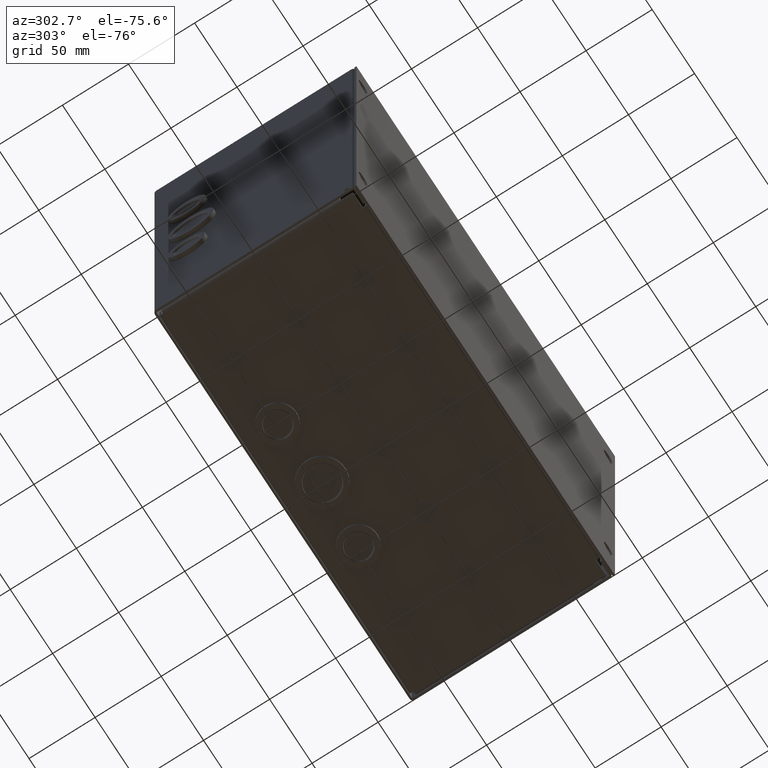
[diagram: clean part render]
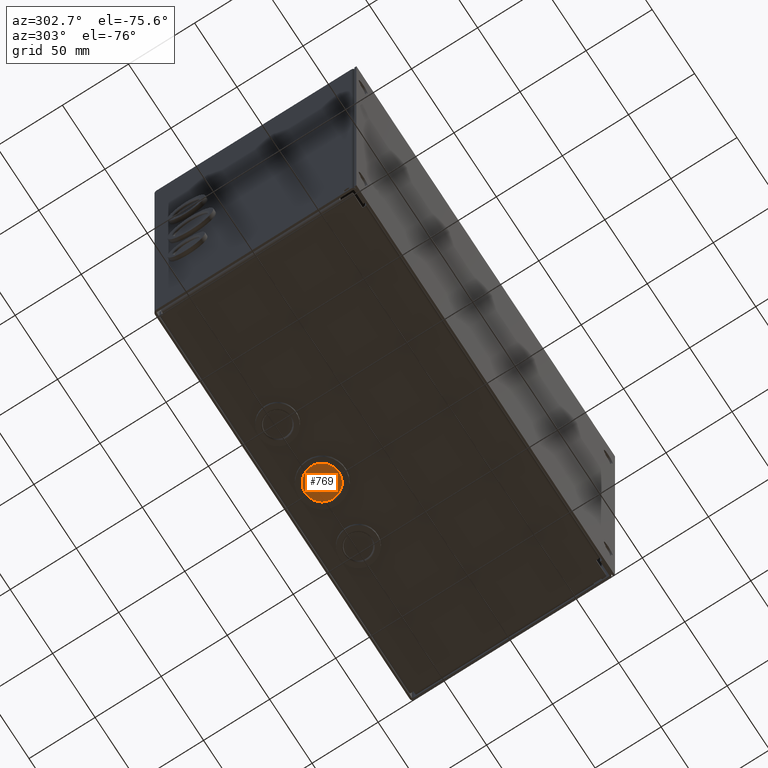
[diagram: same view with one face highlighted and labeled with its STEP entity id]
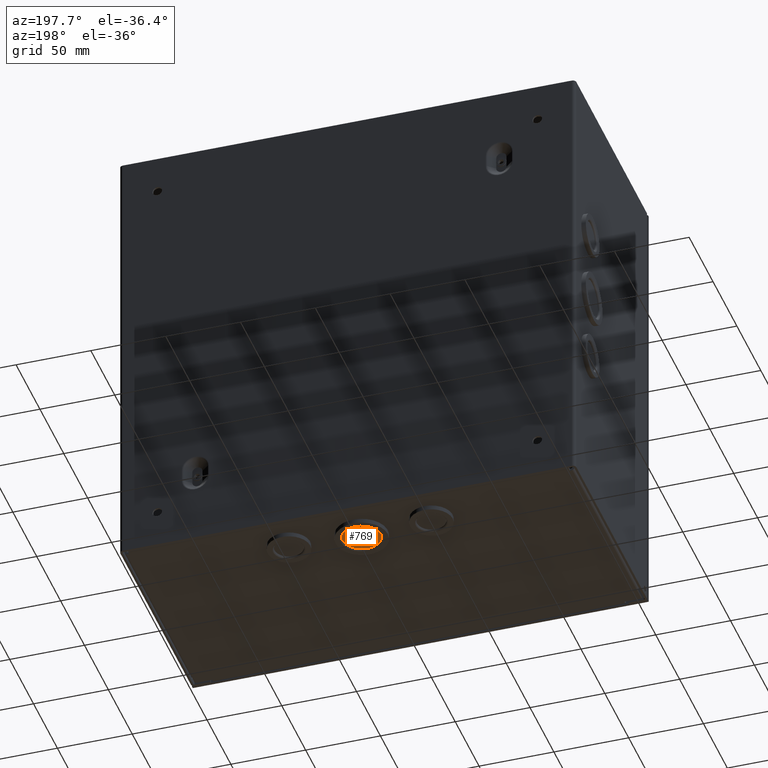
[diagram: same view with one face highlighted and labeled with its STEP entity id]
A machine part, auxiliary view. The second image highlights one B-rep face of the part: STEP entity #769.
A second angle (auxiliary view) of the same face is appended — the face is thin or edge-on in the first view.
In plain terms, the highlighted planar face has unit normal (0, -0, -1).
Its self-contained STEP definition (entity closure, byte-faithful):
#769 = ADVANCED_FACE( '', ( #1714 ), #1715, .T. );
#1714 = FACE_OUTER_BOUND( '', #2828, .T. );
#1715 = PLANE( '', #2829 );
#2828 = EDGE_LOOP( '', ( #4809 ) );
#2829 = AXIS2_PLACEMENT_3D( '', #4810, #4811, #4812 );
#4809 = ORIENTED_EDGE( '', *, *, #6627, .T. );
#4810 = CARTESIAN_POINT( '', ( 0.000000000000000, -1.52400000000000, -46.7995000000000 ) );
#4811 = DIRECTION( '', ( 0.000000000000000, -1.00000000000000, 0.000000000000000 ) );
#4812 = DIRECTION( '', ( 0.000000000000000, 0.000000000000000, -1.00000000000000 ) );
#6627 = EDGE_CURVE( '', #8014, #8014, #8015, .T. );
#8014 = VERTEX_POINT( '', #9939 );
#8015 = CIRCLE( '', #9940, 12.7635000000000 );
#9939 = CARTESIAN_POINT( '', ( 0.000000000000000, -1.52400000000000, -59.5630000000000 ) );
#9940 = AXIS2_PLACEMENT_3D( '', #11111, #11112, #11113 );
#11111 = CARTESIAN_POINT( '', ( 0.000000000000000, -1.52400000000000, -46.7995000000000 ) );
#11112 = DIRECTION( '', ( 0.000000000000000, -1.00000000000000, 0.000000000000000 ) );
#11113 = DIRECTION( '', ( 0.000000000000000, 0.000000000000000, -1.00000000000000 ) );